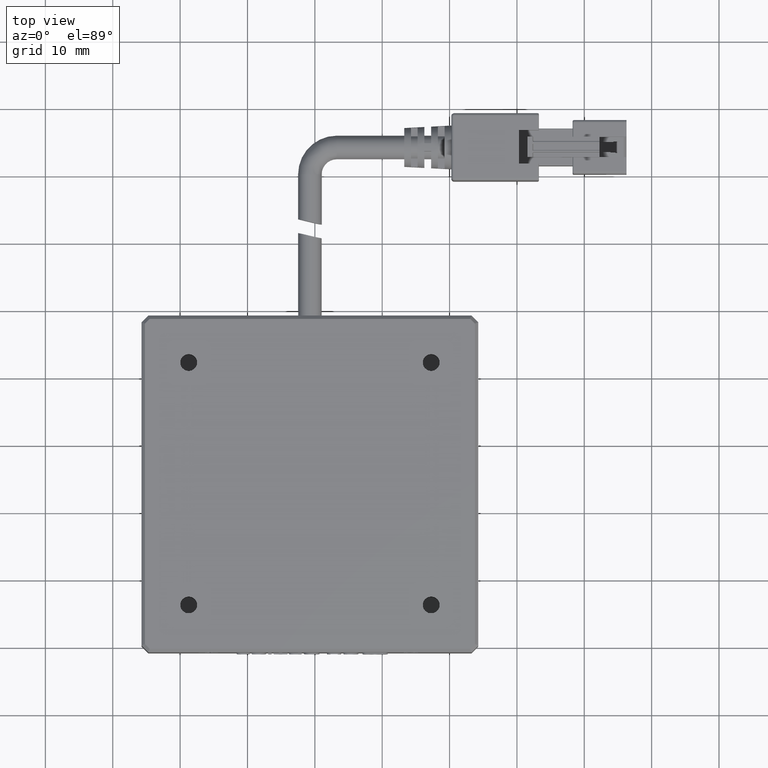
[diagram: clean part render]
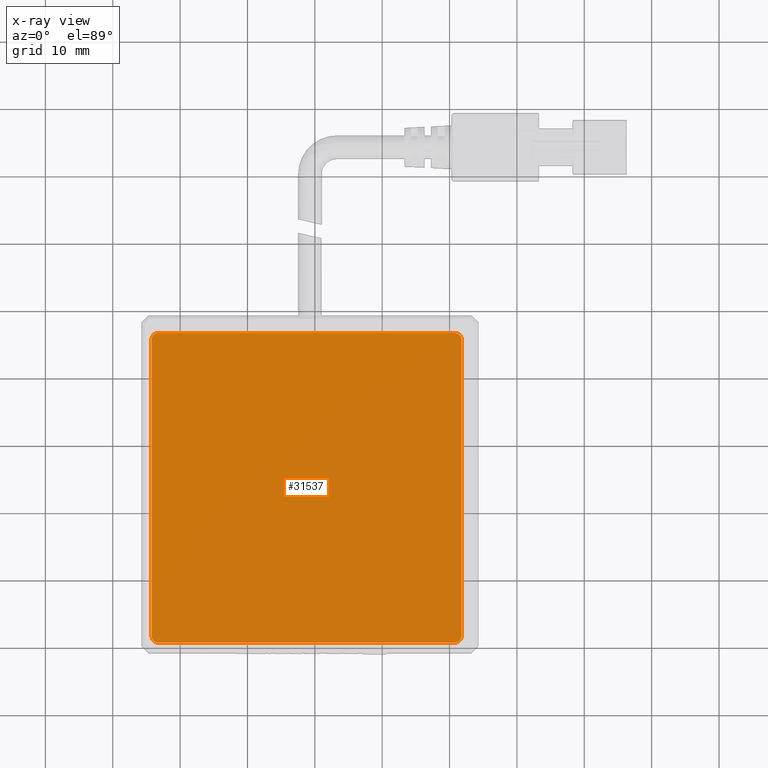
[diagram: x-ray — body ghosted, one internal face saturated and labeled with its STEP entity id]
A machine part, top view, then the same camera in x-ray: the body is ghosted and one INTERNAL B-rep face — a face not visible from any outside direction — is saturated and labeled: STEP entity #31537.
In plain terms, the highlighted planar face has unit normal (0, 0, -1).
Its self-contained STEP definition (entity closure, byte-faithful):
#451 = CARTESIAN_POINT ( 'NONE',  ( 40.76702531645570800, -9.288860759493662300, -3.250000000000000900 ) ) ;
#603 = VECTOR ( 'NONE', #23295, 1000.000000000000000 ) ;
#1017 = ORIENTED_EDGE ( 'NONE', *, *, #28067, .T. ) ;
#2744 = ORIENTED_EDGE ( 'NONE', *, *, #35525, .T. ) ;
#3445 = EDGE_CURVE ( 'NONE', #10067, #4535, #31459, .T. ) ;
#4535 = VERTEX_POINT ( 'NONE', #40520 ) ;
#5173 = VERTEX_POINT ( 'NONE', #13528 ) ;
#5249 = CARTESIAN_POINT ( 'NONE',  ( -3.232974683544290100, 36.71113924050634100, -3.250000000000000900 ) ) ;
#8119 = ORIENTED_EDGE ( 'NONE', *, *, #16067, .T. ) ;
#9063 = CARTESIAN_POINT ( 'NONE',  ( -3.232974683544290100, -8.288860759493660500, -3.250000000000000900 ) ) ;
#9511 = CARTESIAN_POINT ( 'NONE',  ( 40.76702531645570800, 36.71113924050634100, -3.250000000000000900 ) ) ;
#9859 = CARTESIAN_POINT ( 'NONE',  ( 40.76702531645570800, 35.71113924050634100, -3.250000000000000900 ) ) ;
#9959 = ORIENTED_EDGE ( 'NONE', *, *, #33122, .F. ) ;
#10067 = VERTEX_POINT ( 'NONE', #451 ) ;
#10397 = EDGE_LOOP ( 'NONE', ( #9959, #1017, #39525, #15014, #37668, #8119, #29703, #2744 ) ) ;
#10700 = CARTESIAN_POINT ( 'NONE',  ( 40.76702531645570800, -8.288860759493660500, -3.250000000000000900 ) ) ;
#11080 = DIRECTION ( 'NONE',  ( 0.0000000000000000000, 0.0000000000000000000, -1.000000000000000000 ) ) ;
#11129 = AXIS2_PLACEMENT_3D ( 'NONE', #9859, #32538, #13120 ) ;
#11536 = CIRCLE ( 'NONE', #12474, 0.9999999999999974500 ) ;
#12306 = DIRECTION ( 'NONE',  ( -1.000000000000000000, 0.0000000000000000000, 0.0000000000000000000 ) ) ;
#12474 = AXIS2_PLACEMENT_3D ( 'NONE', #9063, #31722, #12306 ) ;
#13120 = DIRECTION ( 'NONE',  ( -1.000000000000000000, 0.0000000000000000000, 0.0000000000000000000 ) ) ;
#13472 = VERTEX_POINT ( 'NONE', #5249 ) ;
#13528 = CARTESIAN_POINT ( 'NONE',  ( -4.232974683544283900, 35.71113924050634100, -3.250000000000000900 ) ) ;
#13963 = DIRECTION ( 'NONE',  ( -1.000000000000000000, 0.0000000000000000000, 0.0000000000000000000 ) ) ;
#15014 = ORIENTED_EDGE ( 'NONE', *, *, #33062, .T. ) ;
#15629 = CARTESIAN_POINT ( 'NONE',  ( -3.232974683544290100, 36.71113924050634100, -3.250000000000000900 ) ) ;
#15724 = CARTESIAN_POINT ( 'NONE',  ( -3.232974683544290100, -9.288860759493662300, -3.250000000000000900 ) ) ;
#16067 = EDGE_CURVE ( 'NONE', #10067, #16969, #35195, .T. ) ;
#16069 = CARTESIAN_POINT ( 'NONE',  ( -3.232974683544290100, 35.71113924050634100, -3.250000000000000900 ) ) ;
#16969 = VERTEX_POINT ( 'NONE', #15724 ) ;
#17887 = CARTESIAN_POINT ( 'NONE',  ( -4.232974683544283900, 35.71113924050634100, -3.250000000000000900 ) ) ;
#18778 = DIRECTION ( 'NONE',  ( 1.000000000000000000, 0.0000000000000000000, 0.0000000000000000000 ) ) ;
#19343 = DIRECTION ( 'NONE',  ( -1.000000000000000000, 0.0000000000000000000, 0.0000000000000000000 ) ) ;
#20031 = CARTESIAN_POINT ( 'NONE',  ( -3.232974683544290100, -9.288860759493662300, -3.250000000000000900 ) ) ;
#21465 = VECTOR ( 'NONE', #40570, 1000.000000000000000 ) ;
#21988 = AXIS2_PLACEMENT_3D ( 'NONE', #16069, #38727, #19343 ) ;
#22315 = DIRECTION ( 'NONE',  ( -0.0000000000000000000, -1.000000000000000000, -0.0000000000000000000 ) ) ;
#22471 = VERTEX_POINT ( 'NONE', #27320 ) ;
#23200 = LINE ( 'NONE', #41760, #40460 ) ;
#23295 = DIRECTION ( 'NONE',  ( -1.000000000000000000, 0.0000000000000000000, 0.0000000000000000000 ) ) ;
#24245 = VERTEX_POINT ( 'NONE', #26740 ) ;
#25667 = CIRCLE ( 'NONE', #11129, 1.000000000000000900 ) ;
#26740 = CARTESIAN_POINT ( 'NONE',  ( -4.232974683544283900, -8.288860759493660500, -3.250000000000000900 ) ) ;
#27320 = CARTESIAN_POINT ( 'NONE',  ( 41.76702531645570100, 35.71113924050634100, -3.250000000000000900 ) ) ;
#28067 = EDGE_CURVE ( 'NONE', #13472, #31820, #37984, .T. ) ;
#28333 = AXIS2_PLACEMENT_3D ( 'NONE', #10700, #33405, #13963 ) ;
#28595 = EDGE_CURVE ( 'NONE', #24245, #16969, #11536, .T. ) ;
#28781 = CIRCLE ( 'NONE', #21988, 0.9999999999999974500 ) ;
#29703 = ORIENTED_EDGE ( 'NONE', *, *, #28595, .F. ) ;
#30497 = CARTESIAN_POINT ( 'NONE',  ( 40.76702531645570800, 35.71113924050634100, -3.250000000000000900 ) ) ;
#31459 = CIRCLE ( 'NONE', #28333, 1.000000000000000900 ) ;
#31537 = ADVANCED_FACE ( 'NONE', ( #32359 ), #36724, .T. ) ;
#31722 = DIRECTION ( 'NONE',  ( -0.0000000000000000000, 0.0000000000000000000, 1.000000000000000000 ) ) ;
#31820 = VERTEX_POINT ( 'NONE', #9511 ) ;
#32359 = FACE_OUTER_BOUND ( 'NONE', #10397, .T. ) ;
#32538 = DIRECTION ( 'NONE',  ( 0.0000000000000000000, -0.0000000000000000000, -1.000000000000000000 ) ) ;
#33062 = EDGE_CURVE ( 'NONE', #22471, #4535, #23200, .T. ) ;
#33122 = EDGE_CURVE ( 'NONE', #13472, #5173, #28781, .T. ) ;
#33405 = DIRECTION ( 'NONE',  ( -0.0000000000000000000, 0.0000000000000000000, 1.000000000000000000 ) ) ;
#33789 = DIRECTION ( 'NONE',  ( -1.000000000000000000, 0.0000000000000000000, 0.0000000000000000000 ) ) ;
#34670 = AXIS2_PLACEMENT_3D ( 'NONE', #30497, #11080, #33789 ) ;
#35195 = LINE ( 'NONE', #20031, #603 ) ;
#35525 = EDGE_CURVE ( 'NONE', #24245, #5173, #38696, .T. ) ;
#36724 = PLANE ( 'NONE',  #34670 ) ;
#36951 = VECTOR ( 'NONE', #18778, 1000.000000000000000 ) ;
#37668 = ORIENTED_EDGE ( 'NONE', *, *, #3445, .F. ) ;
#37984 = LINE ( 'NONE', #15629, #36951 ) ;
#38696 = LINE ( 'NONE', #17887, #21465 ) ;
#38727 = DIRECTION ( 'NONE',  ( -0.0000000000000000000, 0.0000000000000000000, 1.000000000000000000 ) ) ;
#39525 = ORIENTED_EDGE ( 'NONE', *, *, #41369, .T. ) ;
#40460 = VECTOR ( 'NONE', #22315, 1000.000000000000000 ) ;
#40520 = CARTESIAN_POINT ( 'NONE',  ( 41.76702531645570100, -8.288860759493660500, -3.250000000000000900 ) ) ;
#40570 = DIRECTION ( 'NONE',  ( 0.0000000000000000000, 1.000000000000000000, 0.0000000000000000000 ) ) ;
#41369 = EDGE_CURVE ( 'NONE', #31820, #22471, #25667, .T. ) ;
#41760 = CARTESIAN_POINT ( 'NONE',  ( 41.76702531645570100, 35.71113924050634100, -3.250000000000000900 ) ) ;